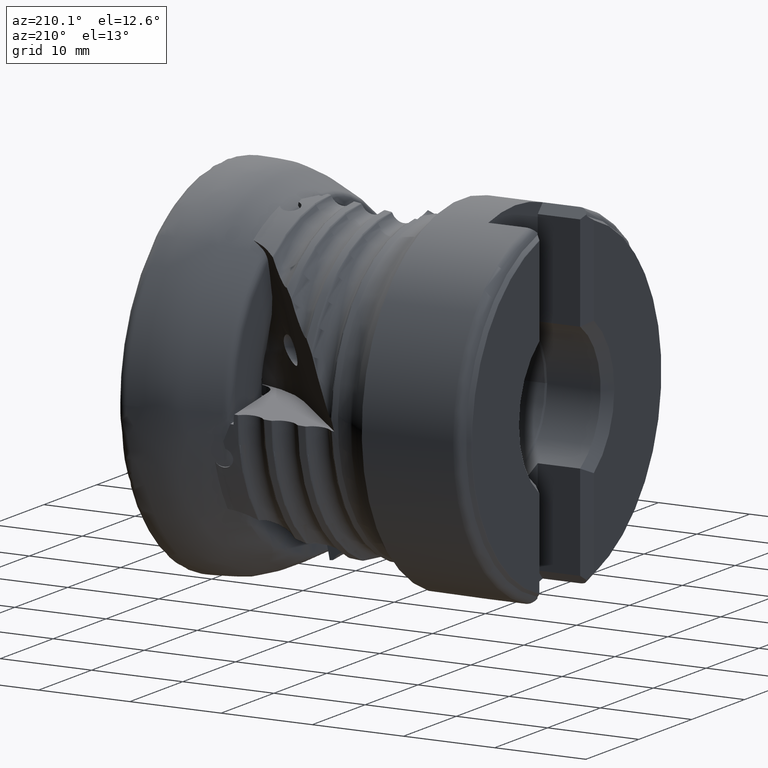
[diagram: clean part render]
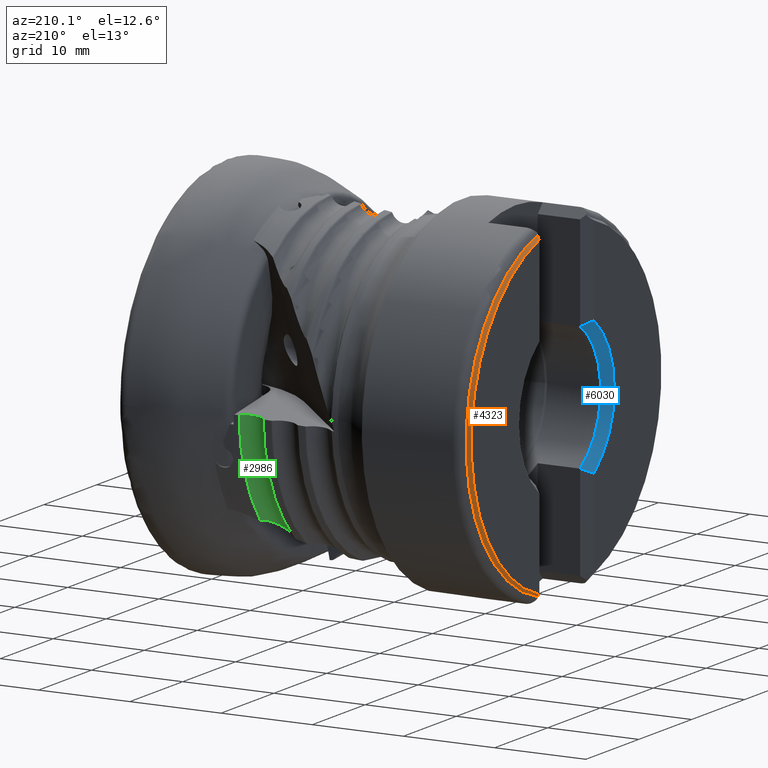
[diagram: same view with three faces highlighted in distinct colors, each labeled with its STEP entity id]
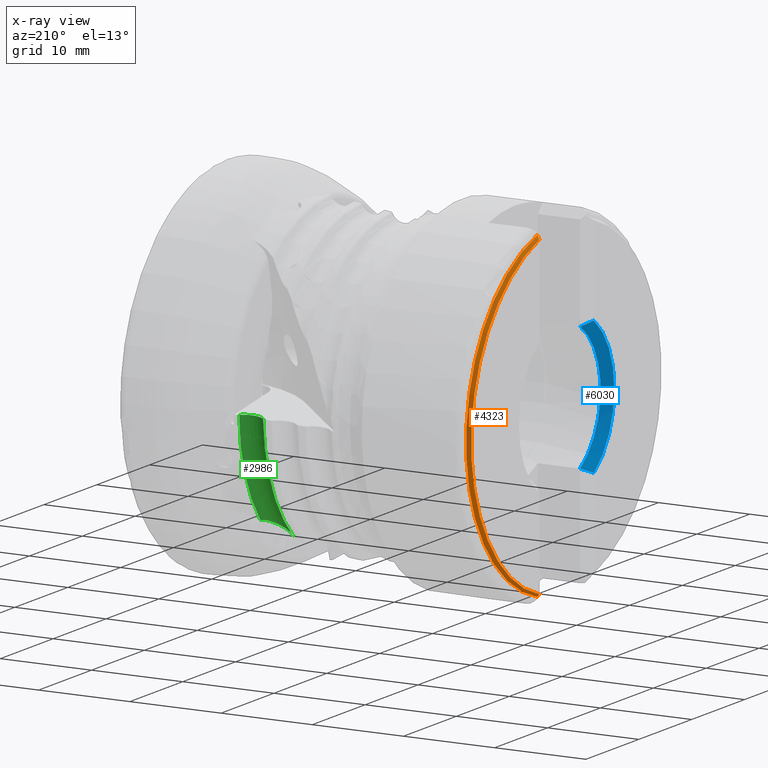
[diagram: x-ray of the same camera — body ghosted, the three highlighted faces saturated]
A machine part, auxiliary view with three faces highlighted in distinct colors.
The next image is the same camera in x-ray (body ghosted, the three faces saturated) — at least one of them is partly hidden behind the body in this view.
Their STEP definitions:

[orange] entity #4323 — the highlighted conical surface has half-angle 29.856 deg.
#207 = DIRECTION ( 'NONE',  ( 0.0000000000000000000, 0.0000000000000000000, -1.000000000000000000 ) ) ;
#267 = CARTESIAN_POINT ( 'NONE',  ( -38.71604565935253800, 4.960786482313091400, -17.34857189730099600 ) ) ;
#598 = DIRECTION ( 'NONE',  ( 1.000000000000000000, -0.0000000000000000000, -0.0000000000000000000 ) ) ;
#1054 = ORIENTED_EDGE ( 'NONE', *, *, #6369, .F. ) ;
#1315 = EDGE_CURVE ( 'Kante160', #7264, #3394, #6703, .T. ) ;
#1332 = AXIS2_PLACEMENT_3D ( 'NONE', #3708, #598, #2168 ) ;
#1486 = CIRCLE ( 'NONE', #2790, 18.20499999999999500 ) ;
#1520 = CARTESIAN_POINT ( 'NONE',  ( -38.43402115014630000, 4.678761973106843700, 17.59349912322756600 ) ) ;
#2074 = CARTESIAN_POINT ( 'NONE',  ( -38.85482412110071900, 5.099564944061271800, 17.22440629066485900 ) ) ;
#2168 = DIRECTION ( 'NONE',  ( 0.0000000000000000000, 0.0000000000000000000, -1.000000000000000000 ) ) ;
#2790 = AXIS2_PLACEMENT_3D ( 'NONE', #9649, #4893, #207 ) ;
#3097 = CARTESIAN_POINT ( 'NONE',  ( -38.71604565935254500, 4.960786482313094900, 17.34857189730099600 ) ) ;
#3394 = VERTEX_POINT ( 'NONE', #2074 ) ;
#3708 = CARTESIAN_POINT ( 'NONE',  ( -38.43402115014630000, 0.0000000000000000000, 0.0000000000000000000 ) ) ;
#4012 = ORIENTED_EDGE ( 'NONE', *, *, #6530, .F. ) ;
#4036 = CARTESIAN_POINT ( 'NONE',  ( -38.43402115014630000, 4.678761973106843700, 17.59349912322756600 ) ) ;
#4209 = CARTESIAN_POINT ( 'NONE',  ( -38.43402115014630000, 4.678761973106843700, -17.59349912322756600 ) ) ;
#4323 = ADVANCED_FACE ( 'NONE', ( #10060 ), #5352, .T. ) ;
#4481 = CARTESIAN_POINT ( 'NONE',  ( -38.85482412110071900, 0.0000000000000000000, 0.0000000000000000000 ) ) ;
#4525 =( BOUNDED_CURVE ( )  B_SPLINE_CURVE ( 3, ( #1520, #7786, #3097, #8593 ),
 .UNSPECIFIED., .F., .F. ) 
 B_SPLINE_CURVE_WITH_KNOTS ( ( 4, 4 ),
 ( 2.380640615877978500, 2.400432903384487100 ),
 .UNSPECIFIED. ) 
 CURVE ( )  GEOMETRIC_REPRESENTATION_ITEM ( )  RATIONAL_B_SPLINE_CURVE ( ( 1.000000000000000000, 0.9999673557126875800, 0.9999673557126875800, 1.000000000000000000 ) ) 
 REPRESENTATION_ITEM ( '' )  );
#4565 =( BOUNDED_CURVE ( )  B_SPLINE_CURVE ( 3, ( #7282, #267, #8913, #4209 ),
 .UNSPECIFIED., .F., .F. ) 
 B_SPLINE_CURVE_WITH_KNOTS ( ( 4, 4 ),
 ( 3.882752403795099600, 3.902544691301608200 ),
 .UNSPECIFIED. ) 
 CURVE ( )  GEOMETRIC_REPRESENTATION_ITEM ( )  RATIONAL_B_SPLINE_CURVE ( ( 1.000000000000000000, 0.9999673557126875800, 0.9999673557126875800, 1.000000000000000000 ) ) 
 REPRESENTATION_ITEM ( '' )  );
#4893 = DIRECTION ( 'NONE',  ( 1.000000000000000000, -0.0000000000000000000, -0.0000000000000000000 ) ) ;
#5287 = DIRECTION ( 'NONE',  ( 0.0000000000000000000, 0.0000000000000000000, -1.000000000000000000 ) ) ;
#5352 = CONICAL_SURFACE ( 'NONE', #1332, 18.20499999999999500, 0.5210887949825812000 ) ;
#5480 = CARTESIAN_POINT ( 'NONE',  ( -38.43402115014630000, 4.678761973106843700, -17.59349912322756600 ) ) ;
#5516 = VERTEX_POINT ( 'NONE', #4036 ) ;
#6008 = CARTESIAN_POINT ( 'NONE',  ( -38.85482412110071900, 5.099564944061271800, -17.22440629066485900 ) ) ;
#6369 = EDGE_CURVE ( 'NONE', #5516, #3394, #4525, .T. ) ;
#6530 = EDGE_CURVE ( 'NONE', #9592, #5516, #1486, .T. ) ;
#6703 = CIRCLE ( 'NONE', #7564, 17.96345553295895300 ) ;
#6994 = EDGE_LOOP ( 'NONE', ( #1054, #4012, #9001, #8698 ) ) ;
#7264 = VERTEX_POINT ( 'NONE', #6008 ) ;
#7282 = CARTESIAN_POINT ( 'NONE',  ( -38.85482412110071900, 5.099564944061271800, -17.22440629066485900 ) ) ;
#7564 = AXIS2_PLACEMENT_3D ( 'NONE', #4481, #10026, #5287 ) ;
#7786 = CARTESIAN_POINT ( 'NONE',  ( -38.57577342328055900, 4.820514246241110400, 17.47160685787717000 ) ) ;
#8593 = CARTESIAN_POINT ( 'NONE',  ( -38.85482412110071900, 5.099564944061271800, 17.22440629066485900 ) ) ;
#8698 = ORIENTED_EDGE ( 'NONE', *, *, #1315, .T. ) ;
#8913 = CARTESIAN_POINT ( 'NONE',  ( -38.57577342328055900, 4.820514246241110400, -17.47160685787717300 ) ) ;
#9001 = ORIENTED_EDGE ( 'NONE', *, *, #10031, .F. ) ;
#9592 = VERTEX_POINT ( 'NONE', #5480 ) ;
#9649 = CARTESIAN_POINT ( 'NONE',  ( -38.43402115014630000, 0.0000000000000000000, 0.0000000000000000000 ) ) ;
#10026 = DIRECTION ( 'NONE',  ( 1.000000000000000000, -0.0000000000000000000, -0.0000000000000000000 ) ) ;
#10031 = EDGE_CURVE ( 'NONE', #7264, #9592, #4565, .T. ) ;
#10060 = FACE_OUTER_BOUND ( 'NONE', #6994, .T. ) ;

[blue] entity #6030 — the highlighted conical surface has half-angle 45 deg.
#75 = B_SPLINE_CURVE_WITH_KNOTS ( 'NONE', 3,
 ( #5347, #10138, #2257, #7748 ),
 .UNSPECIFIED., .F., .F.,
 ( 4, 4 ),
 ( 7.566887547754132700E-005, 0.001514341480787461900 ),
 .UNSPECIFIED. ) ;
#138 = EDGE_LOOP ( 'NONE', ( #3507, #9336, #4706, #7206 ) ) ;
#186 = CARTESIAN_POINT ( 'NONE',  ( -38.90525917703945400, -5.150000000000020800, -7.411351091400261400 ) ) ;
#255 = EDGE_CURVE ( 'NONE', #5001, #2712, #4515, .T. ) ;
#264 = CARTESIAN_POINT ( 'NONE',  ( -38.90525917703945400, -5.150000000000020800, 7.411351091400262300 ) ) ;
#1120 = CONICAL_SURFACE ( 'NONE', #2987, 8.074999999999995700, 0.7853981633974533900 ) ;
#1622 = DIRECTION ( 'NONE',  ( -1.000000000000000000, 1.428069201245745700E-032, 0.0000000000000000000 ) ) ;
#1654 = DIRECTION ( 'NONE',  ( 0.0000000000000000000, -1.000000000000000000, 0.0000000000000000000 ) ) ;
#2257 = CARTESIAN_POINT ( 'NONE',  ( -38.27042417503179200, -4.515164997992348700, 7.073861048405366800 ) ) ;
#2562 = CARTESIAN_POINT ( 'NONE',  ( -38.90525917703945400, -5.150000000000020800, -7.411351091400261400 ) ) ;
#2712 = VERTEX_POINT ( 'NONE', #4895 ) ;
#2846 = CARTESIAN_POINT ( 'NONE',  ( -37.95525917703945900, -3.011444463842724400E-032, 0.0000000000000000000 ) ) ;
#2892 = AXIS2_PLACEMENT_3D ( 'NONE', #2846, #8331, #3622 ) ;
#2987 = AXIS2_PLACEMENT_3D ( 'NONE', #3193, #1622, #1654 ) ;
#3024 = CIRCLE ( 'NONE', #8707, 9.025000000000003900 ) ;
#3193 = CARTESIAN_POINT ( 'NONE',  ( -37.95525917703945900, -3.011444463842724400E-032, 0.0000000000000000000 ) ) ;
#3346 = EDGE_CURVE ( 'NONE', #4910, #8800, #3024, .T. ) ;
#3507 = ORIENTED_EDGE ( 'NONE', *, *, #3346, .F. ) ;
#3612 = DIRECTION ( 'NONE',  ( 1.000000000000000000, -0.0000000000000000000, -0.0000000000000000000 ) ) ;
#3622 = DIRECTION ( 'NONE',  ( 0.0000000000000000000, 1.000000000000000000, 0.0000000000000000000 ) ) ;
#4515 = CIRCLE ( 'NONE', #2892, 8.074999999999995700 ) ;
#4706 = ORIENTED_EDGE ( 'NONE', *, *, #255, .T. ) ;
#4796 = EDGE_CURVE ( 'NONE', #2712, #8800, #6168, .T. ) ;
#4882 = CARTESIAN_POINT ( 'NONE',  ( -38.27042417503179200, -4.515164997992348700, -7.073861048405366800 ) ) ;
#4895 = CARTESIAN_POINT ( 'NONE',  ( -37.95525917703945900, -4.200000000000004600, -6.896783670668515500 ) ) ;
#4910 = VERTEX_POINT ( 'NONE', #264 ) ;
#5001 = VERTEX_POINT ( 'NONE', #9832 ) ;
#5347 = CARTESIAN_POINT ( 'NONE',  ( -38.90525917703945400, -5.150000000000020800, 7.411351091400262300 ) ) ;
#5689 = CARTESIAN_POINT ( 'NONE',  ( -37.95525917703945900, -4.200000000000004600, -6.896783670668515500 ) ) ;
#6030 = ADVANCED_FACE ( 'NONE', ( #7615 ), #1120, .F. ) ;
#6168 = B_SPLINE_CURVE_WITH_KNOTS ( 'NONE', 3,
 ( #5689, #4882, #7253, #2562 ),
 .UNSPECIFIED., .F., .F.,
 ( 4, 4 ),
 ( 3.043218969830755000E-007, 0.001438976927206903700 ),
 .UNSPECIFIED. ) ;
#7206 = ORIENTED_EDGE ( 'NONE', *, *, #4796, .T. ) ;
#7253 = CARTESIAN_POINT ( 'NONE',  ( -38.58718219056054700, -4.831923013521102200, -7.245045608445074900 ) ) ;
#7615 = FACE_OUTER_BOUND ( 'NONE', #138, .T. ) ;
#7748 = CARTESIAN_POINT ( 'NONE',  ( -37.95525917703945900, -4.200000000000004600, 6.896783670668515500 ) ) ;
#8319 = CARTESIAN_POINT ( 'NONE',  ( -38.90525917703945400, -3.011444463842724400E-032, 1.424499028242644900E-031 ) ) ;
#8331 = DIRECTION ( 'NONE',  ( 1.000000000000000000, -1.428069201245745700E-032, -0.0000000000000000000 ) ) ;
#8707 = AXIS2_PLACEMENT_3D ( 'NONE', #8319, #3612, #9146 ) ;
#8800 = VERTEX_POINT ( 'NONE', #186 ) ;
#9146 = DIRECTION ( 'NONE',  ( 0.0000000000000000000, 0.0000000000000000000, 1.000000000000000000 ) ) ;
#9336 = ORIENTED_EDGE ( 'NONE', *, *, #9511, .T. ) ;
#9511 = EDGE_CURVE ( 'NONE', #4910, #5001, #75, .T. ) ;
#9832 = CARTESIAN_POINT ( 'NONE',  ( -37.95525917703945900, -4.200000000000004600, 6.896783670668515500 ) ) ;
#10138 = CARTESIAN_POINT ( 'NONE',  ( -38.58718219056054700, -4.831923013521102200, 7.245045608445074900 ) ) ;

[green] entity #2986 — the highlighted toroidal blend (fillet) surface has major radius 18.3941 mm and minor (blend) radius 1.5 mm.
#58 = CARTESIAN_POINT ( 'NONE',  ( -13.26072872653299900, 17.69980579611261000, -0.2255711552372350900 ) ) ;
#334 = CARTESIAN_POINT ( 'NONE',  ( -15.73276054223739500, 17.41649872880522000, -0.3984324591323359400 ) ) ;
#533 = CARTESIAN_POINT ( 'NONE',  ( -14.51980517250937400, 11.95148850512967800, -11.93050431767265700 ) ) ;
#704 = CARTESIAN_POINT ( 'NONE',  ( -13.37475973676069800, 17.48070947632521300, -0.2335449802451530800 ) ) ;
#887 = EDGE_LOOP ( 'NONE', ( #3620, #4606, #9014, #7066, #5106 ) ) ;
#1320 = CARTESIAN_POINT ( 'NONE',  ( -14.86002558625753200, 11.71472737384642400, -12.20285227967266400 ) ) ;
#1386 = B_SPLINE_CURVE_WITH_KNOTS ( 'NONE', 3,
 ( #8498, #6119, #6154, #1465, #6924, #2250, #7737, #3039, #8529, #3830, #9361, #4615, #10162, #5415, #704, #6187 ),
 .UNSPECIFIED., .F., .F.,
 ( 4, 2, 2, 2, 2, 2, 2, 4 ),
 ( 3.040996882485490200E-007, 0.0003657382935175830700, 0.0007311724873469175800, 0.001096606681176252100, 0.001462040875005586600, 0.001827475068834920900, 0.002192909262664255600, 0.002923777650322929000 ),
 .UNSPECIFIED. ) ;
#1465 = CARTESIAN_POINT ( 'NONE',  ( -15.36419404613209800, 17.09875413323049300, -0.3726597790705064600 ) ) ;
#1617 = DIRECTION ( 'NONE',  ( 1.000000000000000000, -0.0000000000000000000, -0.0000000000000000000 ) ) ;
#1657 = EDGE_CURVE ( 'NONE', #5952, #9935, #8450, .T. ) ;
#2112 = CARTESIAN_POINT ( 'NONE',  ( -15.12518854466239800, 11.58056841132713900, -12.43058528375753400 ) ) ;
#2250 = CARTESIAN_POINT ( 'NONE',  ( -15.02853081065291200, 16.95049442065979800, -0.3491879191268071300 ) ) ;
#2679 = EDGE_CURVE ( 'NONE', #5375, #5952, #9945, .T. ) ;
#2763 = CARTESIAN_POINT ( 'NONE',  ( -13.76493306239313900, 12.78374770481194000, -11.42048983309188900 ) ) ;
#2904 = CARTESIAN_POINT ( 'NONE',  ( -15.57487632890431500, 11.48051831503003200, -12.85594280310375700 ) ) ;
#2909 = FACE_OUTER_BOUND ( 'NONE', #887, .T. ) ;
#2986 = ADVANCED_FACE ( 'NONE', ( #2909 ), #4751, .F. ) ;
#3028 = CARTESIAN_POINT ( 'NONE',  ( -15.73276054223734700, 0.0000000000000000000, 0.0000000000000000000 ) ) ;
#3039 = CARTESIAN_POINT ( 'NONE',  ( -14.66626448247665200, 16.88784947896224900, -0.3238557897229644700 ) ) ;
#3139 = AXIS2_PLACEMENT_3D ( 'NONE', #3028, #8523, #3821 ) ;
#3382 = CARTESIAN_POINT ( 'NONE',  ( -13.26072872653314100, 13.69051896447578700, -11.22068171055124000 ) ) ;
#3620 = ORIENTED_EDGE ( 'NONE', *, *, #8334, .T. ) ;
#3821 = DIRECTION ( 'NONE',  ( 0.0000000000000000000, 0.0000000000000000000, -1.000000000000000000 ) ) ;
#3830 = CARTESIAN_POINT ( 'NONE',  ( -14.30106816791181000, 16.91464098894264400, -0.2983187757119309400 ) ) ;
#4019 = DIRECTION ( 'NONE',  ( 0.0000000000000000000, 0.0000000000000000000, -1.000000000000000000 ) ) ;
#4157 = CARTESIAN_POINT ( 'NONE',  ( -13.26072872653293900, 0.0000000000000000000, 0.0000000000000000000 ) ) ;
#4186 = CARTESIAN_POINT ( 'NONE',  ( -13.66815952227905700, 12.91975491327135700, -11.36410890839848500 ) ) ;
#4286 = CIRCLE ( 'NONE', #3139, 17.42105554766890300 ) ;
#4606 = ORIENTED_EDGE ( 'NONE', *, *, #7893, .T. ) ;
#4615 = CARTESIAN_POINT ( 'NONE',  ( -13.95356570053498600, 17.02866351302884600, -0.2740190360257707700 ) ) ;
#4751 = TOROIDAL_SURFACE ( 'NONE', #9457, 18.39405169595879700, 1.500000000000002400 ) ;
#4931 = DIRECTION ( 'NONE',  ( 0.0000000000000000000, 0.0000000000000000000, 1.000000000000000000 ) ) ;
#5106 = ORIENTED_EDGE ( 'NONE', *, *, #7755, .T. ) ;
#5235 = CARTESIAN_POINT ( 'NONE',  ( -14.35540242795415500, 12.09724106766563000, -11.80852516711488900 ) ) ;
#5375 = VERTEX_POINT ( 'NONE', #58 ) ;
#5415 = CARTESIAN_POINT ( 'NONE',  ( -13.54197089893089500, 17.29301313499611200, -0.2452375237370816300 ) ) ;
#5923 = AXIS2_PLACEMENT_3D ( 'NONE', #4157, #9678, #4931 ) ;
#5952 = VERTEX_POINT ( 'NONE', #6981 ) ;
#6014 = CARTESIAN_POINT ( 'NONE',  ( -14.77398315347202600, 11.76940224543246300, -12.13237719288953400 ) ) ;
#6119 = CARTESIAN_POINT ( 'NONE',  ( -15.65263949394823200, 17.32259661811399500, -0.3928298496559037800 ) ) ;
#6154 = CARTESIAN_POINT ( 'NONE',  ( -15.56276373482772800, 17.24043365181299900, -0.3865451243496048100 ) ) ;
#6187 = CARTESIAN_POINT ( 'NONE',  ( -13.26072872653299900, 17.69980579611261000, -0.2255711552372350900 ) ) ;
#6656 = CARTESIAN_POINT ( 'NONE',  ( -13.90144197887145900, 12.59189571057711500, -11.50002085914380100 ) ) ;
#6787 = CARTESIAN_POINT ( 'NONE',  ( -15.03538782888796600, 11.62036625145984900, -12.35172958716449900 ) ) ;
#6838 = B_SPLINE_CURVE_WITH_KNOTS ( 'NONE', 3,
 ( #2763, #6656, #9976, #5235, #533, #6014, #1320, #6787, #2112, #7596, #2904, #8388 ),
 .UNSPECIFIED., .F., .F.,
 ( 4, 2, 2, 2, 2, 4 ),
 ( 0.001081492032951755800, 0.001822750604627906500, 0.002564009176304057200, 0.002934638462142129100, 0.003305267747980201800, 0.004046526319656349100 ),
 .UNSPECIFIED. ) ;
#6924 = CARTESIAN_POINT ( 'NONE',  ( -15.25482400604463600, 17.03946652622331100, -0.3650118808450575300 ) ) ;
#6981 = CARTESIAN_POINT ( 'NONE',  ( -13.26072872653314100, 13.69051896447578700, -11.22068171055124000 ) ) ;
#7066 = ORIENTED_EDGE ( 'NONE', *, *, #1657, .T. ) ;
#7288 = CARTESIAN_POINT ( 'NONE',  ( -13.40271273231207200, 13.36682850288896200, -11.24945166939905600 ) ) ;
#7596 = CARTESIAN_POINT ( 'NONE',  ( -15.39271983817536200, 11.49521337928918100, -12.67570843962213300 ) ) ;
#7737 = CARTESIAN_POINT ( 'NONE',  ( -14.90869841233943500, 16.91952960267653700, -0.3408084215452022400 ) ) ;
#7750 = CARTESIAN_POINT ( 'NONE',  ( -13.76493306239313900, 12.78374770481194000, -11.42048983309188900 ) ) ;
#7755 = EDGE_CURVE ( 'NONE', #9935, #8160, #6838, .T. ) ;
#7893 = EDGE_CURVE ( 'NONE', #9233, #5375, #1386, .T. ) ;
#8085 = CARTESIAN_POINT ( 'NONE',  ( -13.32539417972775000, 13.52417510263569000, -11.22774130760418200 ) ) ;
#8160 = VERTEX_POINT ( 'NONE', #8988 ) ;
#8334 = EDGE_CURVE ( 'NONE', #8160, #9233, #4286, .T. ) ;
#8388 = CARTESIAN_POINT ( 'NONE',  ( -15.73276054223723900, 11.55374737784374300, -13.03856195766724300 ) ) ;
#8450 = B_SPLINE_CURVE_WITH_KNOTS ( 'NONE', 3,
 ( #3382, #8085, #7288, #8889, #4186, #9711 ),
 .UNSPECIFIED., .F., .F.,
 ( 4, 2, 4 ),
 ( 5.461954976526785200E-007, 0.0005302366644904457500, 0.001059927133483238800 ),
 .UNSPECIFIED. ) ;
#8498 = CARTESIAN_POINT ( 'NONE',  ( -15.73276054223739500, 17.41649872880522000, -0.3984324591323359400 ) ) ;
#8523 = DIRECTION ( 'NONE',  ( 1.000000000000000000, -0.0000000000000000000, -0.0000000000000000000 ) ) ;
#8529 = CARTESIAN_POINT ( 'NONE',  ( -14.54473945493109200, 16.88682264496037200, -0.3153579319753579400 ) ) ;
#8724 = CARTESIAN_POINT ( 'NONE',  ( -14.59114830710107000, 0.0000000000000000000, 0.0000000000000000000 ) ) ;
#8889 = CARTESIAN_POINT ( 'NONE',  ( -13.57381921824418700, 13.06477184105985000, -11.31737903056402100 ) ) ;
#8988 = CARTESIAN_POINT ( 'NONE',  ( -15.73276054223723900, 11.55374737784374300, -13.03856195766724300 ) ) ;
#9014 = ORIENTED_EDGE ( 'NONE', *, *, #2679, .T. ) ;
#9233 = VERTEX_POINT ( 'NONE', #334 ) ;
#9361 = CARTESIAN_POINT ( 'NONE',  ( -14.18147087585449400, 16.94348758723257100, -0.2899557183612878100 ) ) ;
#9457 = AXIS2_PLACEMENT_3D ( 'NONE', #8724, #1617, #4019 ) ;
#9678 = DIRECTION ( 'NONE',  ( -1.000000000000000000, 0.0000000000000000000, 0.0000000000000000000 ) ) ;
#9711 = CARTESIAN_POINT ( 'NONE',  ( -13.76493306239313900, 12.78374770481194000, -11.42048983309188900 ) ) ;
#9935 = VERTEX_POINT ( 'NONE', #7750 ) ;
#9945 = CIRCLE ( 'NONE', #5923, 17.70124310793384500 ) ;
#9976 = CARTESIAN_POINT ( 'NONE',  ( -14.04713228453426900, 12.41676045818628000, -11.59399772730174600 ) ) ;
#10162 = CARTESIAN_POINT ( 'NONE',  ( -13.84306955447200600, 17.08614913211204100, -0.2662923927995439200 ) ) ;